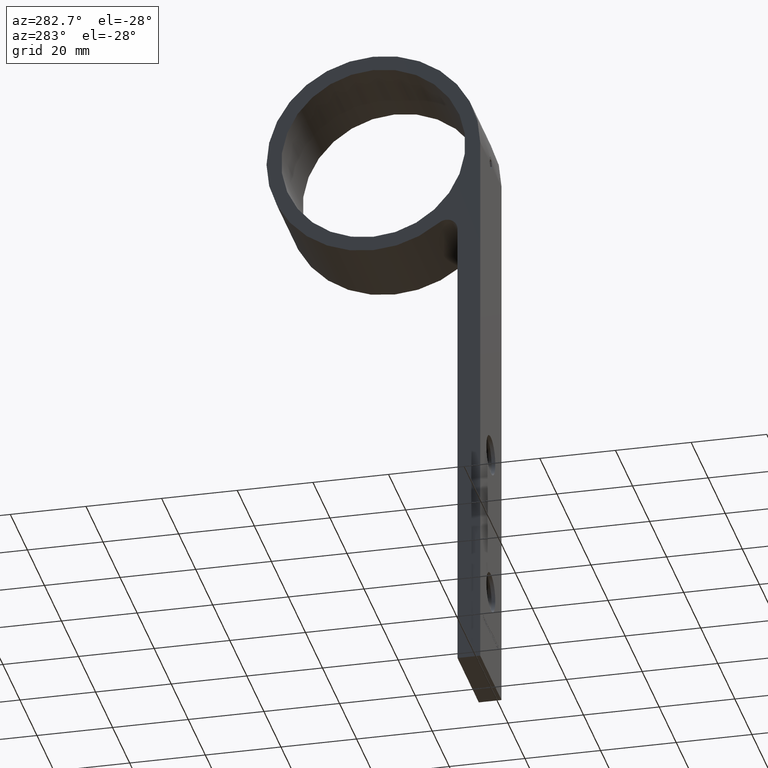
[diagram: clean part render]
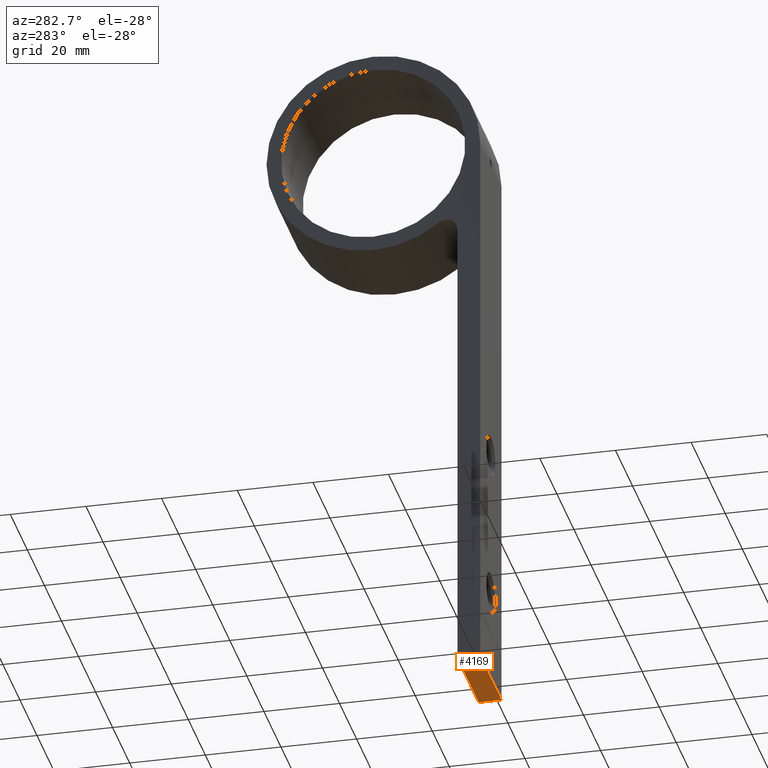
[diagram: same view with one face highlighted and labeled with its STEP entity id]
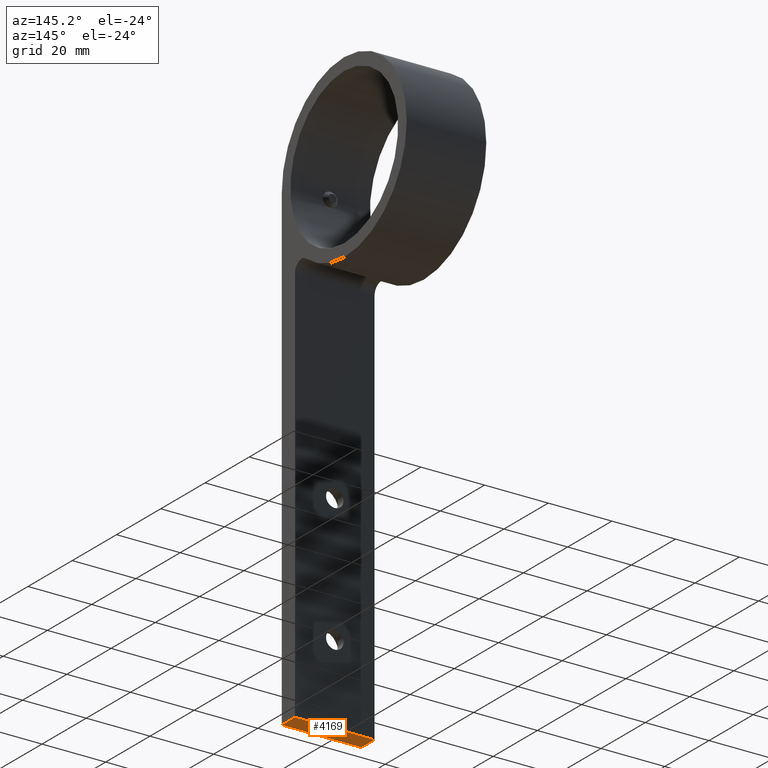
[diagram: same view with one face highlighted and labeled with its STEP entity id]
A machine part, auxiliary view. The second image highlights one B-rep face of the part: STEP entity #4169.
A second angle (auxiliary view) of the same face is appended — the face is thin or edge-on in the first view.
In plain terms, the highlighted planar face has unit normal (0, 0, 1).
Its self-contained STEP definition (entity closure, byte-faithful):
#317 = EDGE_CURVE ( 'NONE', #3720, #10036, #11078, .T. ) ;
#570 = VECTOR ( 'NONE', #6702, 1000.000000000000000 ) ;
#690 = VERTEX_POINT ( 'NONE', #9214 ) ;
#748 = ORIENTED_EDGE ( 'NONE', *, *, #7755, .F. ) ;
#1015 = VECTOR ( 'NONE', #12824, 1000.000000000000000 ) ;
#1516 = LINE ( 'NONE', #7941, #11177 ) ;
#1826 = DIRECTION ( 'NONE',  ( -0.0000000000000000000, 0.0000000000000000000, 1.000000000000000000 ) ) ;
#3389 = CARTESIAN_POINT ( 'NONE',  ( 12.50000000000000000, 6.000000000000000000, -150.0000000000000000 ) ) ;
#3474 = ORIENTED_EDGE ( 'NONE', *, *, #4273, .T. ) ;
#3720 = VERTEX_POINT ( 'NONE', #4283 ) ;
#4169 = ADVANCED_FACE ( 'NONE', ( #7307 ), #13466, .F. ) ;
#4240 = ORIENTED_EDGE ( 'NONE', *, *, #317, .T. ) ;
#4273 = EDGE_CURVE ( 'NONE', #690, #3720, #5949, .T. ) ;
#4283 = CARTESIAN_POINT ( 'NONE',  ( -12.50000000000000000, 0.0000000000000000000, -150.0000000000000000 ) ) ;
#4483 = VECTOR ( 'NONE', #11862, 1000.000000000000000 ) ;
#5773 = DIRECTION ( 'NONE',  ( -0.0000000000000000000, 1.000000000000000000, -0.0000000000000000000 ) ) ;
#5949 = LINE ( 'NONE', #7821, #4483 ) ;
#6274 = EDGE_LOOP ( 'NONE', ( #4240, #748, #9412, #3474 ) ) ;
#6702 = DIRECTION ( 'NONE',  ( -0.0000000000000000000, 1.000000000000000000, -0.0000000000000000000 ) ) ;
#6886 = EDGE_CURVE ( 'NONE', #690, #11195, #1516, .T. ) ;
#7307 = FACE_OUTER_BOUND ( 'NONE', #6274, .T. ) ;
#7755 = EDGE_CURVE ( 'NONE', #11195, #10036, #10845, .T. ) ;
#7821 = CARTESIAN_POINT ( 'NONE',  ( 12.50000000000000000, 0.0000000000000000000, -150.0000000000000000 ) ) ;
#7941 = CARTESIAN_POINT ( 'NONE',  ( 12.50000000000000000, 6.000000000000000000, -150.0000000000000000 ) ) ;
#8241 = CARTESIAN_POINT ( 'NONE',  ( -12.50000000000000000, 6.000000000000000000, -150.0000000000000000 ) ) ;
#9214 = CARTESIAN_POINT ( 'NONE',  ( 12.50000000000000000, 0.0000000000000000000, -150.0000000000000000 ) ) ;
#9287 = CARTESIAN_POINT ( 'NONE',  ( 12.50000000000000000, 6.000000000000000000, -150.0000000000000000 ) ) ;
#9412 = ORIENTED_EDGE ( 'NONE', *, *, #6886, .F. ) ;
#10036 = VERTEX_POINT ( 'NONE', #8241 ) ;
#10845 = LINE ( 'NONE', #3389, #1015 ) ;
#11078 = LINE ( 'NONE', #11829, #570 ) ;
#11177 = VECTOR ( 'NONE', #5773, 1000.000000000000000 ) ;
#11195 = VERTEX_POINT ( 'NONE', #9287 ) ;
#11829 = CARTESIAN_POINT ( 'NONE',  ( -12.50000000000000000, 6.000000000000000000, -150.0000000000000000 ) ) ;
#11862 = DIRECTION ( 'NONE',  ( -1.000000000000000000, -0.0000000000000000000, -0.0000000000000000000 ) ) ;
#12824 = DIRECTION ( 'NONE',  ( -1.000000000000000000, -0.0000000000000000000, -0.0000000000000000000 ) ) ;
#13138 = AXIS2_PLACEMENT_3D ( 'NONE', #13412, #1826, #13270 ) ;
#13270 = DIRECTION ( 'NONE',  ( 1.000000000000000000, 0.0000000000000000000, 0.0000000000000000000 ) ) ;
#13412 = CARTESIAN_POINT ( 'NONE',  ( 12.50000000000000000, 6.000000000000000000, -150.0000000000000000 ) ) ;
#13466 = PLANE ( 'NONE',  #13138 ) ;